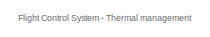
[diagram: root canvas - part 1/3, top left region]
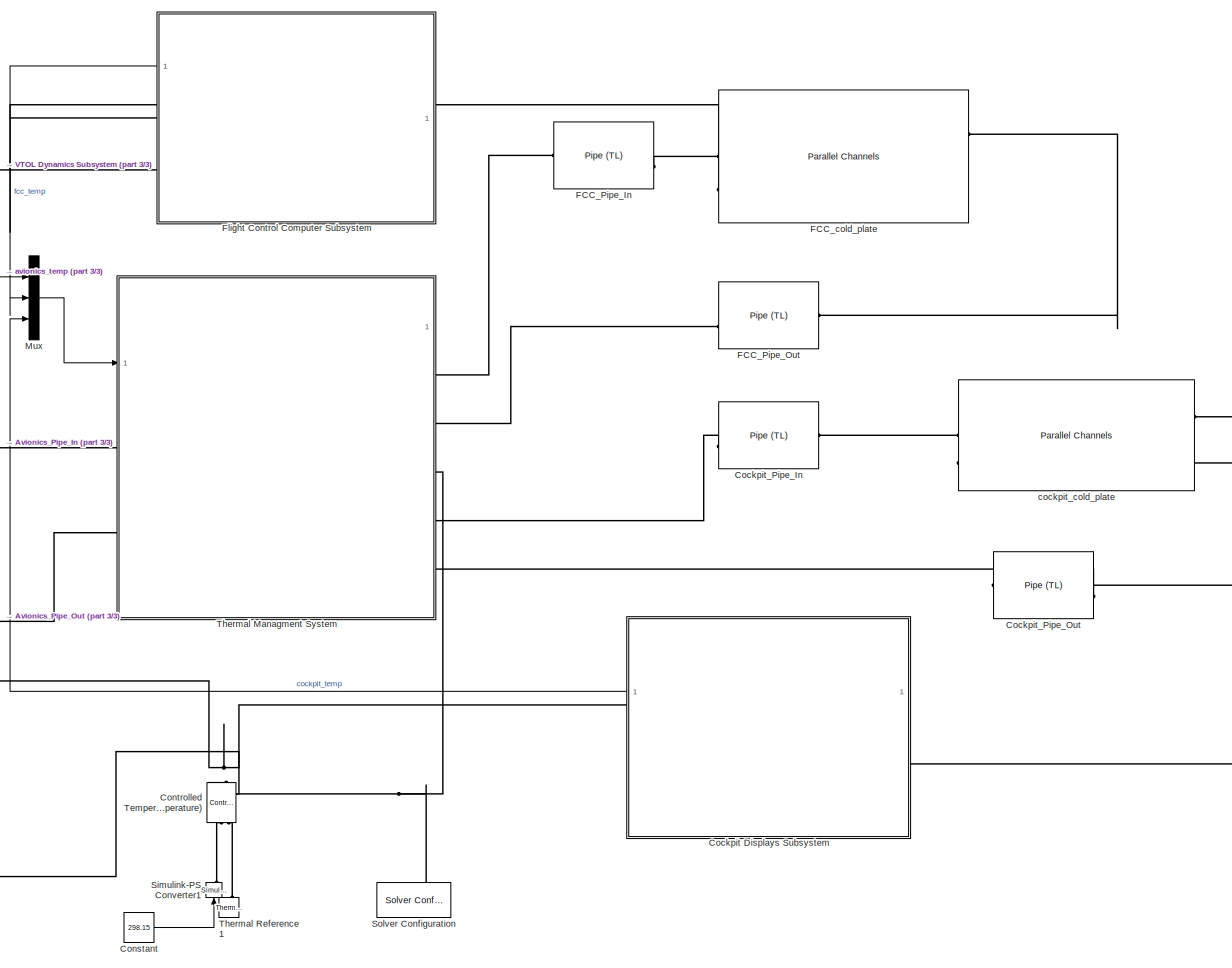
[diagram: root canvas - part 2/3, center side, full height]
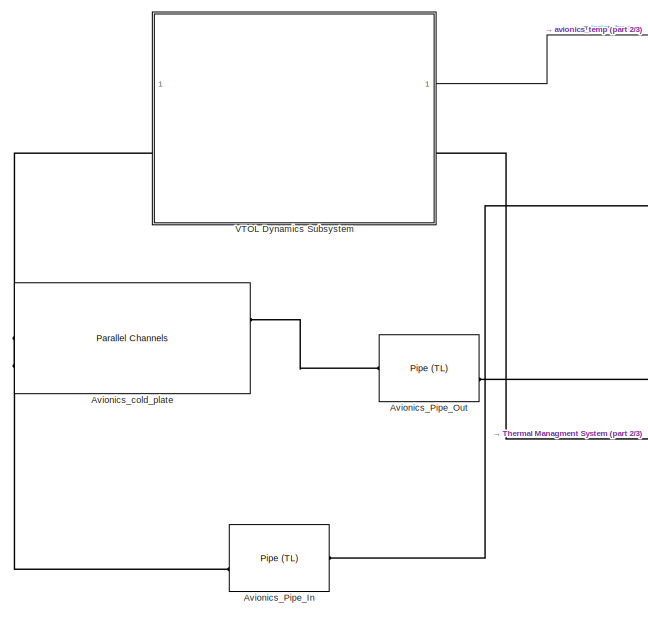
[diagram: root canvas - part 3/3, middle left region]
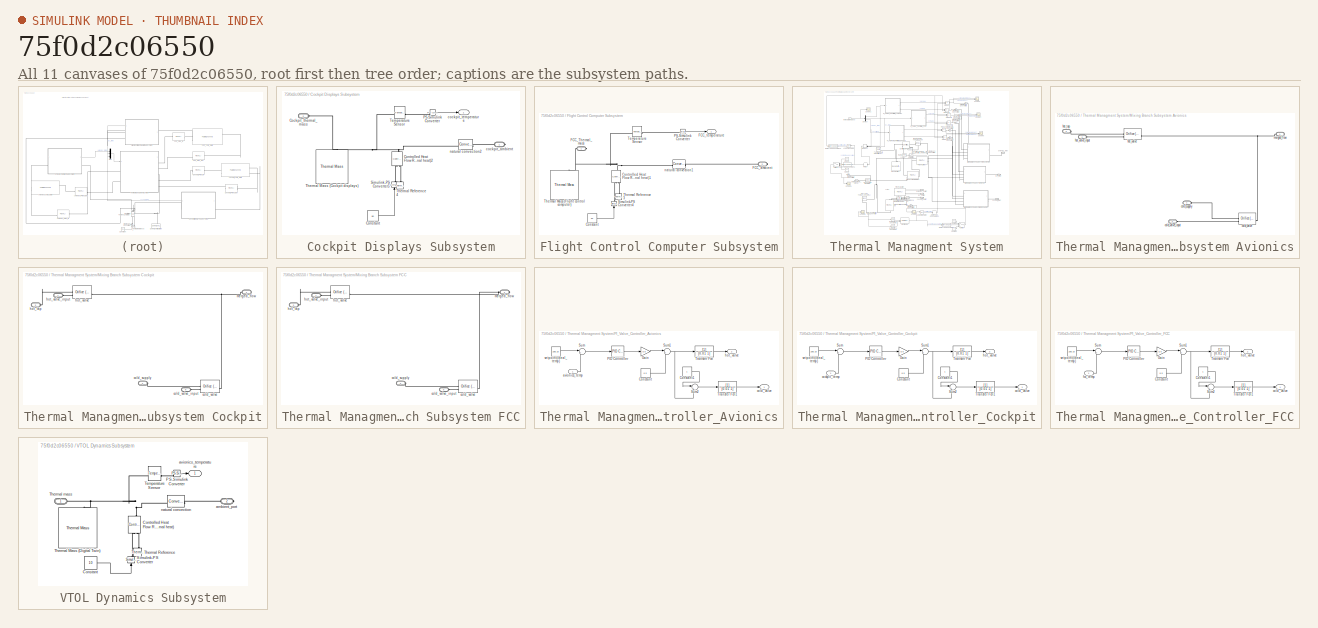
[diagram: thumbnail index - all 11 canvases of the model, root first then tree order]
MODEL slx_75f0d2c06550
KIND model
CONFIG AbsTol = auto
CONFIG EnableMultiTasking = off
CONFIG FixedStep = auto
CONFIG MaxStep = 0.1
CONFIG MinStep = auto
CONFIG RelTol = 1e-2
CONFIG SampleTimeConstraint = Unconstrained
CONFIG SolverName = ode15s
CONFIG StartTime = 0.0
CONFIG StopTime = 5000
BLOCK [Reference] Avionics_Pipe_In  REF=fl_lib/Thermal Liquid/Elements/Pipe (TL)
  SourceBlock = fl_lib/Thermal Liquid/Elements/Pipe (TL)
  SourceType = Pipe (TL)
BLOCK [Reference] Avionics_Pipe_Out  REF=fl_lib/Thermal Liquid/Elements/Pipe (TL)
  SourceBlock = fl_lib/Thermal Liquid/Elements/Pipe (TL)
  SourceType = Pipe (TL)
BLOCK [Reference] Avionics_cold_plate  REF=batt_lib/Thermal/Parallel Channels
  SourceBlock = batt_lib/Thermal/Parallel Channels
  SourceType = Parallel Channels
BLOCK [SubSystem] Cockpit Displays Subsystem
BLOCK [PMIOPort] Cockpit Displays Subsystem/Cockpit_thermal_mass
  Port = 2
  Side = Left
BLOCK [Constant] Cockpit Displays Subsystem/Constant
  Value = 80
BLOCK [Reference] Cockpit Displays Subsystem/Controlled Heat Flow Rate Source (Internal heat)2  REF=fl_lib/Thermal/Thermal Sources/Controlled Heat Flow
Rate Source
  NameLocation = right
  SourceBlock = fl_lib/Thermal/Thermal Sources/Controlled Heat Flow\nRate Source
  SourceType = Controlled Heat Flow\nRate Source
BLOCK [Reference] Cockpit Displays Subsystem/PS-Simulink Converter  REF=nesl_utility/PS-Simulink
Converter
  SourceBlock = nesl_utility/PS-Simulink\nConverter
  SourceType = PS-Simulink\nConverter
BLOCK [Reference] Cockpit Displays Subsystem/Simulink-PS Converter5  REF=nesl_utility/Simulink-PS
Converter
  NameLocation = right
  SourceBlock = nesl_utility/Simulink-PS\nConverter
  SourceType = Simulink-PS\nConverter
BLOCK [Reference] Cockpit Displays Subsystem/Temperature Sensor  REF=fl_lib/Thermal/Thermal Sensors/Temperature Sensor
  SourceBlock = fl_lib/Thermal/Thermal Sensors/Temperature Sensor
  SourceType = Temperature Sensor
BLOCK [Reference] Cockpit Displays Subsystem/Thermal Mass (Cockpit displays)  REF=fl_lib/Thermal/Thermal Elements/Thermal Mass
  SourceBlock = fl_lib/Thermal/Thermal Elements/Thermal Mass
  SourceType = Thermal Mass
BLOCK [Reference] Cockpit Displays Subsystem/Thermal Reference4  REF=fl_lib/Thermal/Thermal Elements/Thermal Reference
  NameLocation = right
  SourceBlock = fl_lib/Thermal/Thermal Elements/Thermal Reference
  SourceType = Thermal Reference
BLOCK [PMIOPort] Cockpit Displays Subsystem/cockpit_ambient
  Side = Right
BLOCK [Outport] Cockpit Displays Subsystem/cockpit_temperature
BLOCK [Reference] Cockpit Displays Subsystem/natural convection2  REF=fl_lib/Thermal/Thermal Elements/Convective Heat
Transfer
  SourceBlock = fl_lib/Thermal/Thermal Elements/Convective Heat\nTransfer
  SourceType = Convective Heat\nTransfer
BLOCK [Reference] Cockpit_Pipe_In  REF=fl_lib/Thermal Liquid/Elements/Pipe (TL)
  NameLocation = top
  SourceBlock = fl_lib/Thermal Liquid/Elements/Pipe (TL)
  SourceType = Pipe (TL)
BLOCK [Reference] Cockpit_Pipe_Out  REF=fl_lib/Thermal Liquid/Elements/Pipe (TL)
  NameLocation = top
  SourceBlock = fl_lib/Thermal Liquid/Elements/Pipe (TL)
  SourceType = Pipe (TL)
BLOCK [Constant] Constant
  Value = 298.15
BLOCK [Reference] Controlled Temperature Source (ambient temperature)  REF=fl_lib/Thermal/Thermal Sources/Controlled
Temperature Source
  NameLocation = right
  SourceBlock = fl_lib/Thermal/Thermal Sources/Controlled\nTemperature Source
  SourceType = Controlled\nTemperature Source
BLOCK [Reference] FCC_Pipe_In  REF=fl_lib/Thermal Liquid/Elements/Pipe (TL)
  SourceBlock = fl_lib/Thermal Liquid/Elements/Pipe (TL)
  SourceType = Pipe (TL)
BLOCK [Reference] FCC_Pipe_Out  REF=fl_lib/Thermal Liquid/Elements/Pipe (TL)
  SourceBlock = fl_lib/Thermal Liquid/Elements/Pipe (TL)
  SourceType = Pipe (TL)
BLOCK [Reference] FCC_cold_plate  REF=batt_lib/Thermal/Parallel Channels
  SourceBlock = batt_lib/Thermal/Parallel Channels
  SourceType = Parallel Channels
BLOCK [SubSystem] Flight Control Computer Subsystem
BLOCK [Constant] Flight Control Computer Subsystem/Constant
  Value = 40
BLOCK [Reference] Flight Control Computer Subsystem/Controlled Heat Flow Rate Source (Internal heat)1  REF=fl_lib/Thermal/Thermal Sources/Controlled Heat Flow
Rate Source
  NameLocation = right
  SourceBlock = fl_lib/Thermal/Thermal Sources/Controlled Heat Flow\nRate Source
  SourceType = Controlled Heat Flow\nRate Source
BLOCK [PMIOPort] Flight Control Computer Subsystem/FCC_Thermal_mass
  Side = Right
BLOCK [PMIOPort] Flight Control Computer Subsystem/FCC_ambient
  Port = 2
  Side = Right
BLOCK [Outport] Flight Control Computer Subsystem/FCC_temperature
BLOCK [Reference] Flight Control Computer Subsystem/PS-Simulink Converter  REF=nesl_utility/PS-Simulink
Converter
  SourceBlock = nesl_utility/PS-Simulink\nConverter
  SourceType = PS-Simulink\nConverter
BLOCK [Reference] Flight Control Computer Subsystem/Simulink-PS Converter4  REF=nesl_utility/Simulink-PS
Converter
  NameLocation = right
  SourceBlock = nesl_utility/Simulink-PS\nConverter
  SourceType = Simulink-PS\nConverter
BLOCK [Reference] Flight Control Computer Subsystem/Temperature Sensor  REF=fl_lib/Thermal/Thermal Sensors/Temperature Sensor
  SourceBlock = fl_lib/Thermal/Thermal Sensors/Temperature Sensor
  SourceType = Temperature Sensor
BLOCK [Reference] Flight Control Computer Subsystem/Thermal Mass (Flight control computer)  REF=fl_lib/Thermal/Thermal Elements/Thermal Mass
  SourceBlock = fl_lib/Thermal/Thermal Elements/Thermal Mass
  SourceType = Thermal Mass
BLOCK [Reference] Flight Control Computer Subsystem/Thermal Reference3  REF=fl_lib/Thermal/Thermal Elements/Thermal Reference
  NameLocation = right
  SourceBlock = fl_lib/Thermal/Thermal Elements/Thermal Reference
  SourceType = Thermal Reference
BLOCK [Reference] Flight Control Computer Subsystem/natural convection1  REF=fl_lib/Thermal/Thermal Elements/Convective Heat
Transfer
  SourceBlock = fl_lib/Thermal/Thermal Elements/Convective Heat\nTransfer
  SourceType = Convective Heat\nTransfer
BLOCK [Mux] Mux
  DisplayOption = bar
  Inputs = 3
BLOCK [Reference] Simulink-PS Converter1  REF=nesl_utility/Simulink-PS
Converter
  NameLocation = right
  SourceBlock = nesl_utility/Simulink-PS\nConverter
  SourceType = Simulink-PS\nConverter
BLOCK [Reference] Solver Configuration  REF=nesl_utility/Solver
Configuration
  NameLocation = right
  SourceBlock = nesl_utility/Solver\nConfiguration
  SourceType = Solver\nConfiguration
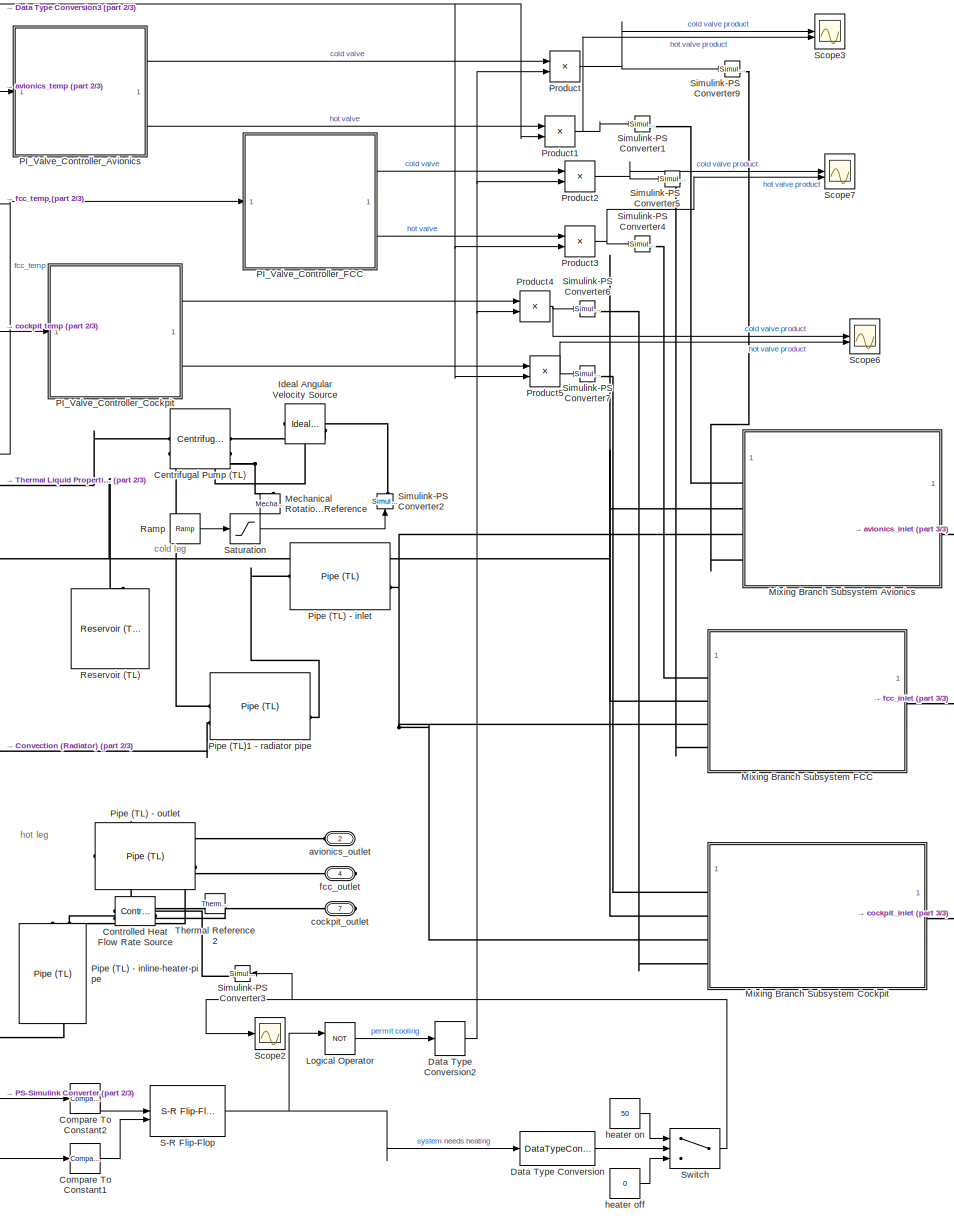
[diagram: Thermal Managment System - part 1/3, center side, full height]
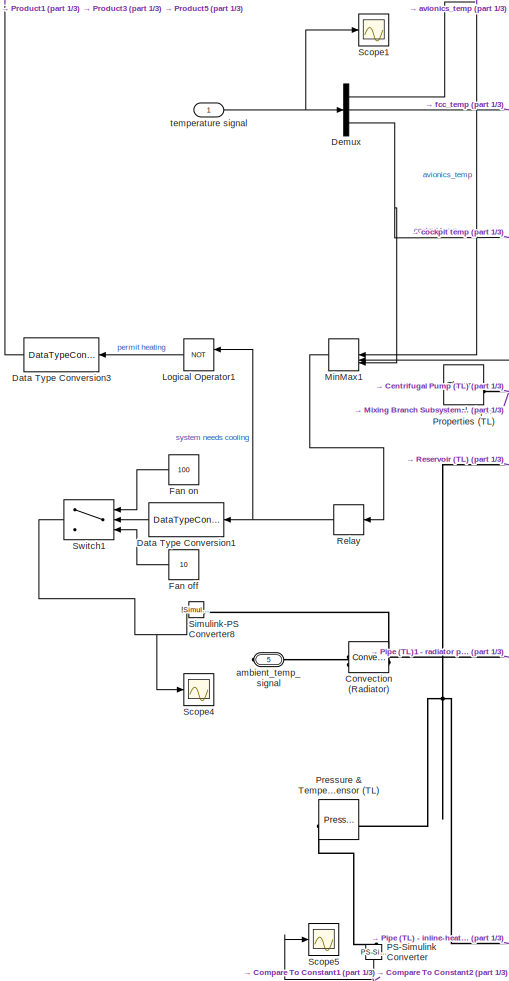
[diagram: Thermal Managment System - part 2/3, left side, full height]
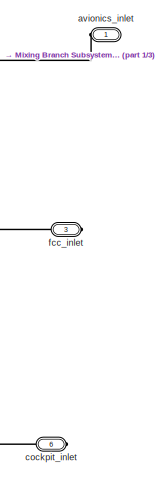
[diagram: Thermal Managment System - part 3/3, middle right region]
BLOCK [SubSystem] Thermal Managment System
BLOCK [Reference] Thermal Managment System/Centrifugal Pump (TL)  REF=SimscapeFluids_lib/Thermal Liquid/Pumps & Motors/Centrifugal Pump
(TL)
  SourceBlock = SimscapeFluids_lib/Thermal Liquid/Pumps & Motors/Centrifugal Pump\n(TL)
  SourceType = Centrifugal Pump\n(TL)
BLOCK [Reference] Thermal Managment System/Compare To Constant1  REF=simulink/Logic and Bit
Operations/Compare
To Constant
  SourceBlock = simulink/Logic and Bit\nOperations/Compare\nTo Constant
  SourceType = Compare To Constant
BLOCK [Reference] Thermal Managment System/Compare To Constant2  REF=simulink/Logic and Bit
Operations/Compare
To Constant
  SourceBlock = simulink/Logic and Bit\nOperations/Compare\nTo Constant
  SourceType = Compare To Constant
BLOCK [Reference] Thermal Managment System/Controlled Heat Flow Rate Source  REF=fl_lib/Thermal/Thermal Sources/Controlled Heat Flow
Rate Source
  NameLocation = top
  SourceBlock = fl_lib/Thermal/Thermal Sources/Controlled Heat Flow\nRate Source
  SourceType = Controlled Heat Flow\nRate Source
BLOCK [Reference] Thermal Managment System/Convection (Radiator)  REF=fl_lib/Thermal/Thermal Elements/Convective Heat
Transfer
  NameLocation = top
  SourceBlock = fl_lib/Thermal/Thermal Elements/Convective Heat\nTransfer
  SourceType = Convective Heat\nTransfer
BLOCK [DataTypeConversion] Thermal Managment System/Data Type Conversion
  OutDataTypeStr = double
  RndMeth = Floor
  SaturateOnIntegerOverflow = off
BLOCK [DataTypeConversion] Thermal Managment System/Data Type Conversion1
  OutDataTypeStr = double
  RndMeth = Floor
  SaturateOnIntegerOverflow = off
BLOCK [DataTypeConversion] Thermal Managment System/Data Type Conversion2
  OutDataTypeStr = double
  RndMeth = Floor
  SaturateOnIntegerOverflow = off
BLOCK [DataTypeConversion] Thermal Managment System/Data Type Conversion3
  OutDataTypeStr = double
  RndMeth = Floor
  SaturateOnIntegerOverflow = off
BLOCK [Demux] Thermal Managment System/Demux
  Outputs = 3
BLOCK [Constant] Thermal Managment System/Fan off
  Value = 10
BLOCK [Constant] Thermal Managment System/Fan on
  Value = 100
BLOCK [Reference] Thermal Managment System/Ideal Angular Velocity Source  REF=fl_lib/Mechanical/Mechanical Sources/Ideal Angular
Velocity Source
  NameLocation = top
  SourceBlock = fl_lib/Mechanical/Mechanical Sources/Ideal Angular\nVelocity Source
  SourceType = Ideal Angular\nVelocity Source
BLOCK [Logic] Thermal Managment System/Logical Operator
  AllPortsSameDT = off
  Operator = NOT
  OutDataTypeStr = boolean
BLOCK [Logic] Thermal Managment System/Logical Operator1
  AllPortsSameDT = off
  Operator = NOT
  OutDataTypeStr = boolean
BLOCK [Reference] Thermal Managment System/Mechanical Rotational Reference  REF=fl_lib/Mechanical/Rotational Elements/Mechanical
Rotational Reference
  NameLocation = right
  SourceBlock = fl_lib/Mechanical/Rotational Elements/Mechanical\nRotational Reference
  SourceType = Mechanical\nRotational Reference
BLOCK [MinMax] Thermal Managment System/MinMax1
  Function = max
  Inputs = 3
BLOCK [SubSystem] Thermal Managment System/Mixing Branch Subsystem Avionics
BLOCK [PMIOPort] Thermal Managment System/Mixing Branch Subsystem Avionics/cold_supply
  Port = 4
  Side = Left
BLOCK [Reference] Thermal Managment System/Mixing Branch Subsystem Avionics/cold_valve  REF=SimscapeFluids_lib/Thermal Liquid/Valves & Orifices/Orifice (TL)
  SourceBlock = SimscapeFluids_lib/Thermal Liquid/Valves & Orifices/Orifice (TL)
  SourceType = Orifice (TL)
BLOCK [PMIOPort] Thermal Managment System/Mixing Branch Subsystem Avionics/cold_valve_input
  Port = 5
  Side = Left
BLOCK [PMIOPort] Thermal Managment System/Mixing Branch Subsystem Avionics/hot_tap
  Port = 3
  Side = Left
BLOCK [Reference] Thermal Managment System/Mixing Branch Subsystem Avionics/hot_valve  REF=SimscapeFluids_lib/Thermal Liquid/Valves & Orifices/Orifice (TL)
  SourceBlock = SimscapeFluids_lib/Thermal Liquid/Valves & Orifices/Orifice (TL)
  SourceType = Orifice (TL)
BLOCK [PMIOPort] Thermal Managment System/Mixing Branch Subsystem Avionics/hot_valve_input
  Port = 2
  Side = Left
BLOCK [PMIOPort] Thermal Managment System/Mixing Branch Subsystem Avionics/merged_flow
  Side = Right
BLOCK [SubSystem] Thermal Managment System/Mixing Branch Subsystem Cockpit
BLOCK [PMIOPort] Thermal Managment System/Mixing Branch Subsystem Cockpit/cold_supply
  Port = 4
  Side = Left
BLOCK [Reference] Thermal Managment System/Mixing Branch Subsystem Cockpit/cold_valve  REF=SimscapeFluids_lib/Thermal Liquid/Valves & Orifices/Orifice (TL)
  SourceBlock = SimscapeFluids_lib/Thermal Liquid/Valves & Orifices/Orifice (TL)
  SourceType = Orifice (TL)
BLOCK [PMIOPort] Thermal Managment System/Mixing Branch Subsystem Cockpit/cold_valve_input
  Port = 5
  Side = Left
BLOCK [PMIOPort] Thermal Managment System/Mixing Branch Subsystem Cockpit/hot_tap
  Port = 3
  Side = Left
BLOCK [Reference] Thermal Managment System/Mixing Branch Subsystem Cockpit/hot_valve  REF=SimscapeFluids_lib/Thermal Liquid/Valves & Orifices/Orifice (TL)
  SourceBlock = SimscapeFluids_lib/Thermal Liquid/Valves & Orifices/Orifice (TL)
  SourceType = Orifice (TL)
BLOCK [PMIOPort] Thermal Managment System/Mixing Branch Subsystem Cockpit/hot_valve_input
  Port = 2
  Side = Left
BLOCK [PMIOPort] Thermal Managment System/Mixing Branch Subsystem Cockpit/merged_flow
  Side = Right
BLOCK [SubSystem] Thermal Managment System/Mixing Branch Subsystem FCC
BLOCK [PMIOPort] Thermal Managment System/Mixing Branch Subsystem FCC/cold_supply
  Port = 4
  Side = Left
BLOCK [Reference] Thermal Managment System/Mixing Branch Subsystem FCC/cold_valve  REF=SimscapeFluids_lib/Thermal Liquid/Valves & Orifices/Orifice (TL)
  SourceBlock = SimscapeFluids_lib/Thermal Liquid/Valves & Orifices/Orifice (TL)
  SourceType = Orifice (TL)
BLOCK [PMIOPort] Thermal Managment System/Mixing Branch Subsystem FCC/cold_valve_input
  Port = 5
  Side = Left
BLOCK [PMIOPort] Thermal Managment System/Mixing Branch Subsystem FCC/hot_tap
  Port = 3
  Side = Left
BLOCK [Reference] Thermal Managment System/Mixing Branch Subsystem FCC/hot_valve  REF=SimscapeFluids_lib/Thermal Liquid/Valves & Orifices/Orifice (TL)
  SourceBlock = SimscapeFluids_lib/Thermal Liquid/Valves & Orifices/Orifice (TL)
  SourceType = Orifice (TL)
BLOCK [PMIOPort] Thermal Managment System/Mixing Branch Subsystem FCC/hot_valve_input
  Port = 2
  Side = Left
BLOCK [PMIOPort] Thermal Managment System/Mixing Branch Subsystem FCC/merged_flow
  Side = Right
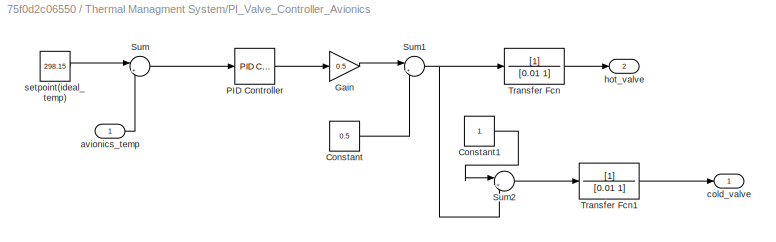
BLOCK [SubSystem] Thermal Managment System/PI_Valve_Controller_Avionics
BLOCK [Constant] Thermal Managment System/PI_Valve_Controller_Avionics/Constant
  Value = 0.5
BLOCK [Constant] Thermal Managment System/PI_Valve_Controller_Avionics/Constant1
BLOCK [Gain] Thermal Managment System/PI_Valve_Controller_Avionics/Gain
  Gain = 0.5
BLOCK [Reference] Thermal Managment System/PI_Valve_Controller_Avionics/PID Controller  REF=slpidlib/PID Controller
  LibrarySourceBlock = simulink/Continuous/PID Controller
  SourceBlock = slpidlib/PID Controller
  SourceType = PID 1dof
BLOCK [Sum] Thermal Managment System/PI_Valve_Controller_Avionics/Sum
  Inputs = |+-
BLOCK [Sum] Thermal Managment System/PI_Valve_Controller_Avionics/Sum1
  Inputs = |++
  NameLocation = top
BLOCK [Sum] Thermal Managment System/PI_Valve_Controller_Avionics/Sum2
  Inputs = |+-
BLOCK [TransferFcn] Thermal Managment System/PI_Valve_Controller_Avionics/Transfer Fcn
  Denominator = [0.01 1]
BLOCK [TransferFcn] Thermal Managment System/PI_Valve_Controller_Avionics/Transfer Fcn1
  Denominator = [0.01 1]
BLOCK [Inport] Thermal Managment System/PI_Valve_Controller_Avionics/avionics_temp
BLOCK [Outport] Thermal Managment System/PI_Valve_Controller_Avionics/cold_valve
BLOCK [Outport] Thermal Managment System/PI_Valve_Controller_Avionics/hot_valve
  Port = 2
BLOCK [Constant] Thermal Managment System/PI_Valve_Controller_Avionics/setpoint(ideal_temp)
  Value = 298.15
BLOCK [SubSystem] Thermal Managment System/PI_Valve_Controller_Cockpit
BLOCK [Constant] Thermal Managment System/PI_Valve_Controller_Cockpit/Constant
  Value = 0.5
BLOCK [Constant] Thermal Managment System/PI_Valve_Controller_Cockpit/Constant1
BLOCK [Gain] Thermal Managment System/PI_Valve_Controller_Cockpit/Gain
  Gain = 0.5
BLOCK [Reference] Thermal Managment System/PI_Valve_Controller_Cockpit/PID Controller  REF=slpidlib/PID Controller
  LibrarySourceBlock = simulink/Continuous/PID Controller
  SourceBlock = slpidlib/PID Controller
  SourceType = PID 1dof
BLOCK [Sum] Thermal Managment System/PI_Valve_Controller_Cockpit/Sum
  Inputs = |+-
BLOCK [Sum] Thermal Managment System/PI_Valve_Controller_Cockpit/Sum1
  Inputs = |++
  NameLocation = top
BLOCK [Sum] Thermal Managment System/PI_Valve_Controller_Cockpit/Sum2
  Inputs = |+-
BLOCK [TransferFcn] Thermal Managment System/PI_Valve_Controller_Cockpit/Transfer Fcn
  Denominator = [0.01 1]
BLOCK [TransferFcn] Thermal Managment System/PI_Valve_Controller_Cockpit/Transfer Fcn1
  Denominator = [0.01 1]
BLOCK [Inport] Thermal Managment System/PI_Valve_Controller_Cockpit/cockpit_temp
BLOCK [Outport] Thermal Managment System/PI_Valve_Controller_Cockpit/cold_valve
BLOCK [Outport] Thermal Managment System/PI_Valve_Controller_Cockpit/hot_valve
  Port = 2
BLOCK [Constant] Thermal Managment System/PI_Valve_Controller_Cockpit/setpoint(ideal_temp)
  Value = 298.15
BLOCK [SubSystem] Thermal Managment System/PI_Valve_Controller_FCC
BLOCK [Constant] Thermal Managment System/PI_Valve_Controller_FCC/Constant
  Value = 0.5
BLOCK [Constant] Thermal Managment System/PI_Valve_Controller_FCC/Constant1
BLOCK [Gain] Thermal Managment System/PI_Valve_Controller_FCC/Gain
  Gain = 0.5
BLOCK [Reference] Thermal Managment System/PI_Valve_Controller_FCC/PID Controller  REF=slpidlib/PID Controller
  LibrarySourceBlock = simulink/Continuous/PID Controller
  SourceBlock = slpidlib/PID Controller
  SourceType = PID 1dof
BLOCK [Sum] Thermal Managment System/PI_Valve_Controller_FCC/Sum
  Inputs = |+-
BLOCK [Sum] Thermal Managment System/PI_Valve_Controller_FCC/Sum1
  Inputs = |++
  NameLocation = top
BLOCK [Sum] Thermal Managment System/PI_Valve_Controller_FCC/Sum2
  Inputs = |+-
BLOCK [TransferFcn] Thermal Managment System/PI_Valve_Controller_FCC/Transfer Fcn
  Denominator = [0.01 1]
BLOCK [TransferFcn] Thermal Managment System/PI_Valve_Controller_FCC/Transfer Fcn1
  Denominator = [0.01 1]
BLOCK [Outport] Thermal Managment System/PI_Valve_Controller_FCC/cold_valve
BLOCK [Inport] Thermal Managment System/PI_Valve_Controller_FCC/fcc_temp
BLOCK [Outport] Thermal Managment System/PI_Valve_Controller_FCC/hot_valve
  Port = 2
BLOCK [Constant] Thermal Managment System/PI_Valve_Controller_FCC/setpoint(ideal_temp)
  Value = 298.15
BLOCK [Reference] Thermal Managment System/PS-Simulink Converter  REF=nesl_utility/PS-Simulink
Converter
  NameLocation = left
  SourceBlock = nesl_utility/PS-Simulink\nConverter
  SourceType = PS-Simulink\nConverter
BLOCK [Reference] Thermal Managment System/Pipe (TL) - inlet  REF=fl_lib/Thermal Liquid/Elements/Pipe (TL)
  SourceBlock = fl_lib/Thermal Liquid/Elements/Pipe (TL)
  SourceType = Pipe (TL)
BLOCK [Reference] Thermal Managment System/Pipe (TL) - inline-heater-pipe  REF=fl_lib/Thermal Liquid/Elements/Pipe (TL)
  SourceBlock = fl_lib/Thermal Liquid/Elements/Pipe (TL)
  SourceType = Pipe (TL)
BLOCK [Reference] Thermal Managment System/Pipe (TL) - outlet  REF=fl_lib/Thermal Liquid/Elements/Pipe (TL)
  NameLocation = top
  SourceBlock = fl_lib/Thermal Liquid/Elements/Pipe (TL)
  SourceType = Pipe (TL)
BLOCK [Reference] Thermal Managment System/Pipe (TL)1 - radiator pipe  REF=fl_lib/Thermal Liquid/Elements/Pipe (TL)
  SourceBlock = fl_lib/Thermal Liquid/Elements/Pipe (TL)
  SourceType = Pipe (TL)
BLOCK [Reference] Thermal Managment System/Pressure & Temperature Sensor (TL)  REF=fl_lib/Thermal Liquid/Sensors/Pressure &
Temperature Sensor
(TL)
  SourceBlock = fl_lib/Thermal Liquid/Sensors/Pressure &\nTemperature Sensor\n(TL)
  SourceType = Pressure &\nTemperature Sensor\n(TL)
BLOCK [Product] Thermal Managment System/Product
BLOCK [Product] Thermal Managment System/Product1
BLOCK [Product] Thermal Managment System/Product2
BLOCK [Product] Thermal Managment System/Product3
BLOCK [Product] Thermal Managment System/Product4
BLOCK [Product] Thermal Managment System/Product5
BLOCK [Reference] Thermal Managment System/Ramp  REF=simulink/Sources/Ramp
  SourceBlock = simulink/Sources/Ramp
  SourceType = Ramp
BLOCK [Relay] Thermal Managment System/Relay
  OffSwitchValue = 307.15
  OnSwitchValue = 308.15
BLOCK [Reference] Thermal Managment System/Reservoir (TL)   REF=fl_lib/Thermal Liquid/Elements/Reservoir (TL)
  SourceBlock = fl_lib/Thermal Liquid/Elements/Reservoir (TL)
  SourceType = Reservoir (TL)
BLOCK [Reference] Thermal Managment System/S-R Flip-Flop  REF=simulink_extras/Flip Flops/S-R
Flip-Flop
  SourceBlock = simulink_extras/Flip Flops/S-R\nFlip-Flop
  SourceType = SRFlipFlop
BLOCK [Saturate] Thermal Managment System/Saturation
  LowerLimit = 0
  UpperLimit = 3000
BLOCK [Scope] Thermal Managment System/Scope1
  ActiveDisplayYMaximum = 309.81465883467445
  ActiveDisplayYMinimum = 294.34876570244938
  DataLoggingVariableName = ScopeData1
  Floating = off
  GraphicalSettings = {"AxesScalingProperties":{"AlignXAxis":"Center","AlignYAxis":"Center","AutoScaleXAxisLimits":false,"AxesScaling":"Manual","AxesScalingNumUpdates":10,"ExpandOnly":true,"ScaleAxesLimitsAtStop":false,"XAxisDataRange":100,"YAxisDataRange":80},"DisplayProperties":{"ColorOrder":["auto","auto","auto","auto","auto","auto","auto","auto","auto","auto","auto","auto","auto","auto","auto","auto","auto","auto",...<+2338ch>
  LayoutDimensionsString = [1,1]
  MultipleDisplayCache = [{"MaxYLimMag":299.95006823882784,"MaxYLimReal":309.81465883467445,"MinYLimMag":297.949992417908,"MinYLimReal":294.34876570244938,"PlotAsMagnitudePhase":false,"ShowGrid":true,"ShowLegend":true,"Title":"%<SignalLabel>","YLabel":""}]
  NumInputPorts = 1
  ScopeFrameLocation = window
  ShowLegend = on
  Visible = on
  WasSavedAsWebScope = on
  WindowPosition = [743.000000,253.000000,560.000000,420.000000,]
BLOCK [Scope] Thermal Managment System/Scope2
  ActiveDisplayYMaximum = 67.656527037864834
  ActiveDisplayYMinimum = -18.574706388101248
  DataLoggingVariableName = ScopeData2
  Floating = off
  GraphicalSettings = {"Style":{"BackgroundColor":[0.12941176470588237,0.12941176470588237,0.12941176470588237],"AxesColor":[0.07058823529411765,0.07058823529411765,0.07058823529411765],"LabelsColor":[0.8509803921568627,0.8509803921568627,0.8509803921568627],"PreserveColors":false,"Visible":[true],"LineStyle":["-"],"LineWidth":[1.5],"BarWidth":[0.9],"LineColor":["auto"],"LineFaceAlpha":[1],"LineEdgeAlpha":[1],"Marker":...<+1947ch>
  MultipleDisplayCache = [{"MaxYLimMag":1,"MaxYLimReal":67.656527037864834,"MinYLimMag":0,"MinYLimReal":-18.574706388101248,"PlotAsMagnitudePhase":false,"ShowGrid":true,"ShowLegend":false,"Title":"%<SignalLabel>","YLabel":""}]
  NumInputPorts = 1
  ScopeFrameLocation = window
  WasSavedAsWebScope = on
  WindowPosition = [821.000000,214.000000,560.000000,420.000000,]
BLOCK [Scope] Thermal Managment System/Scope3
  ActiveDisplayYMaximum = 0.68337651791294018
  ActiveDisplayYMinimum = -0.24217564391764534
  DataLoggingVariableName = ScopeData3
  Floating = off
  GraphicalSettings = {"AxesScalingProperties":{"AlignXAxis":"Center","AlignYAxis":"Center","AutoScaleXAxisLimits":false,"AxesScaling":"Manual","AxesScalingNumUpdates":10,"ExpandOnly":true,"ScaleAxesLimitsAtStop":false,"XAxisDataRange":100,"YAxisDataRange":80},"DisplayProperties":{"ColorOrder":["auto","auto","auto","auto","auto","auto","auto","auto","auto","auto","auto","auto","auto","auto","auto","auto","auto","auto",...<+2197ch>
  MultipleDisplayCache = [{"MaxYLimMag":299.95006823882784,"MaxYLimReal":0.68337651791294018,"MinYLimMag":297.949992417908,"MinYLimReal":-0.24217564391764534,"PlotAsMagnitudePhase":false,"ShowGrid":true,"ShowLegend":true,"Title":"%<SignalLabel>","YLabel":""}]
  NumInputPorts = 2
  ScopeFrameLocation = window
  ShowLegend = on
  WasSavedAsWebScope = on
  WindowPosition = [385.000000,40.000000,766.000000,785.000000,]
BLOCK [Scope] Thermal Managment System/Scope4
  ActiveDisplayYMaximum = 62.456397666600694
  ActiveDisplayYMinimum = -17.443836096573261
  DataLoggingVariableName = ScopeData4
  Floating = off
  GraphicalSettings = {"Style":{"BackgroundColor":[0.12941176470588237,0.12941176470588237,0.12941176470588237],"AxesColor":[0.07058823529411765,0.07058823529411765,0.07058823529411765],"LabelsColor":[0.8509803921568627,0.8509803921568627,0.8509803921568627],"PreserveColors":false,"Visible":[true],"LineStyle":["-"],"LineWidth":[1.5],"BarWidth":[0.9],"LineColor":["auto"],"LineFaceAlpha":[1],"LineEdgeAlpha":[1],"Marker":...<+1956ch>
  MultipleDisplayCache = [{"MaxYLimMag":1,"MaxYLimReal":62.456397666600694,"MinYLimMag":0,"MinYLimReal":-17.443836096573261,"PlotAsMagnitudePhase":false,"ShowGrid":true,"ShowLegend":false,"Title":"%<SignalLabel>","YLabel":""}]
  NumInputPorts = 1
  ScopeFrameLocation = window
  Visible = on
  WasSavedAsWebScope = on
  WindowPosition = [488.000000,222.000000,560.000000,420.000000,]
BLOCK [Scope] Thermal Managment System/Scope5
  ActiveDisplayYMaximum = 296.28099923951214
  ActiveDisplayYMinimum = 292.31370524419793
  DataLoggingVariableName = ScopeData5
  Floating = off
  GraphicalSettings = {"AxesScalingProperties":{"AlignXAxis":"Center","AlignYAxis":"Center","AutoScaleXAxisLimits":false,"AxesScaling":"Manual","AxesScalingNumUpdates":10,"ExpandOnly":true,"ScaleAxesLimitsAtStop":false,"XAxisDataRange":100,"YAxisDataRange":80},"DisplayProperties":{"ColorOrder":["auto","auto","auto","auto","auto","auto","auto","auto","auto","auto","auto","auto","auto","auto","auto","auto","auto","auto",...<+1996ch>
  MultipleDisplayCache = [{"MaxYLimMag":1,"MaxYLimReal":296.28099923951214,"MinYLimMag":0,"MinYLimReal":292.31370524419793,"PlotAsMagnitudePhase":false,"ShowGrid":true,"ShowLegend":true,"Title":"%<SignalLabel>","YLabel":""}]
  NumInputPorts = 1
  ScopeFrameLocation = window
  ShowLegend = on
  WasSavedAsWebScope = on
  WindowPosition = [830.000000,257.000000,560.000000,420.000000,]
BLOCK [Scope] Thermal Managment System/Scope6
  ActiveDisplayYMaximum = 1.3314895720023909
  ActiveDisplayYMinimum = -0.26550876950504732
  DataLoggingVariableName = ScopeData6
  Floating = off
  GraphicalSettings = {"Style":{"BackgroundColor":[0.12941176470588237,0.12941176470588237,0.12941176470588237],"AxesColor":[0.07058823529411765,0.07058823529411765,0.07058823529411765],"LabelsColor":[0.8509803921568627,0.8509803921568627,0.8509803921568627],"PreserveColors":false,"Visible":[true,true],"LineStyle":["-","-"],"LineWidth":[1.5,1.5],"BarWidth":[0.9,0.9],"LineColor":["auto","auto"],"LineFaceAlpha":[1,1],"Li...<+2182ch>
  MultipleDisplayCache = [{"MaxYLimMag":299.95006823882784,"MaxYLimReal":1.3314895720023909,"MinYLimMag":297.949992417908,"MinYLimReal":-0.26550876950504732,"PlotAsMagnitudePhase":false,"ShowGrid":true,"ShowLegend":true,"Title":"%<SignalLabel>","YLabel":""}]
  NumInputPorts = 2
  ScopeFrameLocation = window
  ShowLegend = on
  WasSavedAsWebScope = on
  WindowPosition = [861.000000,173.000000,560.000000,420.000000,]
BLOCK [Scope] Thermal Managment System/Scope7
  ActiveDisplayYMaximum = 1.2618169694914934
  ActiveDisplayYMinimum = -0.25040000463615819
  Floating = off
  GraphicalSettings = {"Style":{"BackgroundColor":[0.12941176470588237,0.12941176470588237,0.12941176470588237],"AxesColor":[0.07058823529411765,0.07058823529411765,0.07058823529411765],"LabelsColor":[0.8509803921568627,0.8509803921568627,0.8509803921568627],"PreserveColors":false,"Visible":[true,true],"LineStyle":["-","-"],"LineWidth":[1.5,1.5],"BarWidth":[0.9,0.9],"LineColor":["auto","auto"],"LineFaceAlpha":[1,1],"Li...<+2184ch>
  MultipleDisplayCache = [{"MaxYLimMag":299.95006823882784,"MaxYLimReal":1.2618169694914934,"MinYLimMag":297.949992417908,"MinYLimReal":-0.25040000463615819,"PlotAsMagnitudePhase":false,"ShowGrid":true,"ShowLegend":true,"Title":"%<SignalLabel>","YLabel":""}]
  NumInputPorts = 2
  ScopeFrameLocation = window
  ShowLegend = on
  WasSavedAsWebScope = on
  WindowPosition = [385.000000,40.000000,766.000000,785.000000,]
BLOCK [Reference] Thermal Managment System/Simulink-PS Converter1  REF=nesl_utility/Simulink-PS
Converter
  SourceBlock = nesl_utility/Simulink-PS\nConverter
  SourceType = Simulink-PS\nConverter
BLOCK [Reference] Thermal Managment System/Simulink-PS Converter2  REF=nesl_utility/Simulink-PS
Converter
  NameLocation = right
  SourceBlock = nesl_utility/Simulink-PS\nConverter
  SourceType = Simulink-PS\nConverter
BLOCK [Reference] Thermal Managment System/Simulink-PS Converter3  REF=nesl_utility/Simulink-PS
Converter
  NameLocation = top
  SourceBlock = nesl_utility/Simulink-PS\nConverter
  SourceType = Simulink-PS\nConverter
BLOCK [Reference] Thermal Managment System/Simulink-PS Converter4  REF=nesl_utility/Simulink-PS
Converter
  SourceBlock = nesl_utility/Simulink-PS\nConverter
  SourceType = Simulink-PS\nConverter
BLOCK [Reference] Thermal Managment System/Simulink-PS Converter5  REF=nesl_utility/Simulink-PS
Converter
  SourceBlock = nesl_utility/Simulink-PS\nConverter
  SourceType = Simulink-PS\nConverter
BLOCK [Reference] Thermal Managment System/Simulink-PS Converter6  REF=nesl_utility/Simulink-PS
Converter
  SourceBlock = nesl_utility/Simulink-PS\nConverter
  SourceType = Simulink-PS\nConverter
BLOCK [Reference] Thermal Managment System/Simulink-PS Converter7  REF=nesl_utility/Simulink-PS
Converter
  SourceBlock = nesl_utility/Simulink-PS\nConverter
  SourceType = Simulink-PS\nConverter
BLOCK [Reference] Thermal Managment System/Simulink-PS Converter8  REF=nesl_utility/Simulink-PS
Converter
  SourceBlock = nesl_utility/Simulink-PS\nConverter
  SourceType = Simulink-PS\nConverter
BLOCK [Reference] Thermal Managment System/Simulink-PS Converter9  REF=nesl_utility/Simulink-PS
Converter
  SourceBlock = nesl_utility/Simulink-PS\nConverter
  SourceType = Simulink-PS\nConverter
BLOCK [Switch] Thermal Managment System/Switch
  Criteria = u2 ~= 0
  InputSameDT = off
  SaturateOnIntegerOverflow = off
BLOCK [Switch] Thermal Managment System/Switch1
  Criteria = u2 ~= 0
  InputSameDT = off
  SaturateOnIntegerOverflow = off
BLOCK [Reference] Thermal Managment System/Thermal Liquid Properties (TL)   REF=SimscapeFluids_lib/Thermal Liquid/Utilities/Thermal Liquid
Properties (TL)
  SourceBlock = SimscapeFluids_lib/Thermal Liquid/Utilities/Thermal Liquid\nProperties (TL)
  SourceType = Thermal Liquid\nProperties (TL)
BLOCK [Reference] Thermal Managment System/Thermal Reference2  REF=fl_lib/Thermal/Thermal Elements/Thermal Reference
  NameLocation = top
  SourceBlock = fl_lib/Thermal/Thermal Elements/Thermal Reference
  SourceType = Thermal Reference
BLOCK [PMIOPort] Thermal Managment System/ambient_temp_signal
  NameLocation = top
  Port = 5
  Side = Right
BLOCK [PMIOPort] Thermal Managment System/avionics_inlet
  NameLocation = top
  Side = Left
BLOCK [PMIOPort] Thermal Managment System/avionics_outlet
  NameLocation = top
  Port = 2
  Side = Left
BLOCK [PMIOPort] Thermal Managment System/cockpit_inlet
  NameLocation = top
  Port = 6
  Side = Right
BLOCK [PMIOPort] Thermal Managment System/cockpit_outlet
  NameLocation = top
  Port = 7
  Side = Right
BLOCK [PMIOPort] Thermal Managment System/fcc_inlet
  NameLocation = top
  Port = 3
  Side = Right
BLOCK [PMIOPort] Thermal Managment System/fcc_outlet
  NameLocation = top
  Port = 4
  Side = Right
BLOCK [Constant] Thermal Managment System/heater off
  Value = 0
BLOCK [Constant] Thermal Managment System/heater on
  Value = 50
BLOCK [Inport] Thermal Managment System/temperature signal
BLOCK [Reference] Thermal Reference1  REF=fl_lib/Thermal/Thermal Elements/Thermal Reference
  NameLocation = right
  SourceBlock = fl_lib/Thermal/Thermal Elements/Thermal Reference
  SourceType = Thermal Reference
BLOCK [SubSystem] VTOL Dynamics Subsystem
BLOCK [Constant] VTOL Dynamics Subsystem/Constant
  Value = 10
BLOCK [Reference] VTOL Dynamics Subsystem/Controlled Heat Flow Rate Source (Internal heat)  REF=fl_lib/Thermal/Thermal Sources/Controlled Heat Flow
Rate Source
  NameLocation = right
  SourceBlock = fl_lib/Thermal/Thermal Sources/Controlled Heat Flow\nRate Source
  SourceType = Controlled Heat Flow\nRate Source
BLOCK [Reference] VTOL Dynamics Subsystem/PS-Simulink Converter  REF=nesl_utility/PS-Simulink
Converter
  SourceBlock = nesl_utility/PS-Simulink\nConverter
  SourceType = PS-Simulink\nConverter
BLOCK [Reference] VTOL Dynamics Subsystem/Simulink-PS Converter  REF=nesl_utility/Simulink-PS
Converter
  NameLocation = right
  SourceBlock = nesl_utility/Simulink-PS\nConverter
  SourceType = Simulink-PS\nConverter
BLOCK [Reference] VTOL Dynamics Subsystem/Temperature Sensor  REF=fl_lib/Thermal/Thermal Sensors/Temperature Sensor
  SourceBlock = fl_lib/Thermal/Thermal Sensors/Temperature Sensor
  SourceType = Temperature Sensor
BLOCK [Reference] VTOL Dynamics Subsystem/Thermal Mass (Digital Twin)  REF=fl_lib/Thermal/Thermal Elements/Thermal Mass
  SourceBlock = fl_lib/Thermal/Thermal Elements/Thermal Mass
  SourceType = Thermal Mass
BLOCK [Reference] VTOL Dynamics Subsystem/Thermal Reference  REF=fl_lib/Thermal/Thermal Elements/Thermal Reference
  NameLocation = right
  SourceBlock = fl_lib/Thermal/Thermal Elements/Thermal Reference
  SourceType = Thermal Reference
BLOCK [PMIOPort] VTOL Dynamics Subsystem/Thermal mass
  Side = Left
BLOCK [PMIOPort] VTOL Dynamics Subsystem/ambient_port
  Port = 2
  Side = Right
BLOCK [Outport] VTOL Dynamics Subsystem/avionics_temperature
BLOCK [Reference] VTOL Dynamics Subsystem/natural convection  REF=fl_lib/Thermal/Thermal Elements/Convective Heat
Transfer
  SourceBlock = fl_lib/Thermal/Thermal Elements/Convective Heat\nTransfer
  SourceType = Convective Heat\nTransfer
BLOCK [Reference] cockpit_cold_plate  REF=batt_lib/Thermal/Parallel Channels
  SourceBlock = batt_lib/Thermal/Parallel Channels
  SourceType = Parallel Channels
ANNOTATION (root): Flight Control System - Thermal management
ANNOTATION Thermal Managment System: cold leg
ANNOTATION Thermal Managment System: hot leg
LINE Cockpit Displays Subsystem/Constant:1 -> Cockpit Displays Subsystem/Simulink-PS Converter5:1
LINE Cockpit Displays Subsystem/PS-Simulink Converter:1 -> Cockpit Displays Subsystem/cockpit_temperature:1
LINE Cockpit Displays Subsystem:1 -> Mux:3
LINE Constant:1 -> Simulink-PS Converter1:1
LINE Flight Control Computer Subsystem/Constant:1 -> Flight Control Computer Subsystem/Simulink-PS Converter4:1
LINE Flight Control Computer Subsystem/PS-Simulink Converter:1 -> Flight Control Computer Subsystem/FCC_temperature:1
LINE Flight Control Computer Subsystem:1 -> Mux:2
LINE Mux:1 -> Thermal Managment System:1
LINE Thermal Managment System/Compare To Constant1:1 -> Thermal Managment System/S-R Flip-Flop:2
LINE Thermal Managment System/Compare To Constant2:1 -> Thermal Managment System/S-R Flip-Flop:1
LINE Thermal Managment System/Data Type Conversion1:1 -> Thermal Managment System/Switch1:2
NET Thermal Managment System/Data Type Conversion2:1 -> Thermal Managment System/Product2:2, Thermal Managment System/Product4:2, Thermal Managment System/Product:2
NET Thermal Managment System/Data Type Conversion3:1 -> Thermal Managment System/Product1:2, Thermal Managment System/Product3:2, Thermal Managment System/Product5:2
LINE Thermal Managment System/Data Type Conversion:1 -> Thermal Managment System/Switch:2
NET Thermal Managment System/Demux:1 -> Thermal Managment System/MinMax1:1, Thermal Managment System/PI_Valve_Controller_Avionics:1
NET Thermal Managment System/Demux:2 -> Thermal Managment System/MinMax1:2, Thermal Managment System/PI_Valve_Controller_FCC:1
NET Thermal Managment System/Demux:3 -> Thermal Managment System/MinMax1:3, Thermal Managment System/PI_Valve_Controller_Cockpit:1
LINE Thermal Managment System/Fan off:1 -> Thermal Managment System/Switch1:3
LINE Thermal Managment System/Fan on:1 -> Thermal Managment System/Switch1:1
LINE Thermal Managment System/Logical Operator1:1 -> Thermal Managment System/Data Type Conversion3:1
LINE Thermal Managment System/Logical Operator:1 -> Thermal Managment System/Data Type Conversion2:1
LINE Thermal Managment System/MinMax1:1 -> Thermal Managment System/Relay:1
LINE Thermal Managment System/PI_Valve_Controller_Avionics/Constant1:1 -> Thermal Managment System/PI_Valve_Controller_Avionics/Sum2:1
LINE Thermal Managment System/PI_Valve_Controller_Avionics/Constant:1 -> Thermal Managment System/PI_Valve_Controller_Avionics/Sum1:2
LINE Thermal Managment System/PI_Valve_Controller_Avionics/Gain:1 -> Thermal Managment System/PI_Valve_Controller_Avionics/Sum1:1
LINE Thermal Managment System/PI_Valve_Controller_Avionics/PID Controller:1 -> Thermal Managment System/PI_Valve_Controller_Avionics/Gain:1
NET Thermal Managment System/PI_Valve_Controller_Avionics/Sum1:1 -> Thermal Managment System/PI_Valve_Controller_Avionics/Sum2:2, Thermal Managment System/PI_Valve_Controller_Avionics/Transfer Fcn:1
LINE Thermal Managment System/PI_Valve_Controller_Avionics/Sum2:1 -> Thermal Managment System/PI_Valve_Controller_Avionics/Transfer Fcn1:1
LINE Thermal Managment System/PI_Valve_Controller_Avionics/Sum:1 -> Thermal Managment System/PI_Valve_Controller_Avionics/PID Controller:1
LINE Thermal Managment System/PI_Valve_Controller_Avionics/Transfer Fcn1:1 -> Thermal Managment System/PI_Valve_Controller_Avionics/cold_valve:1
LINE Thermal Managment System/PI_Valve_Controller_Avionics/Transfer Fcn:1 -> Thermal Managment System/PI_Valve_Controller_Avionics/hot_valve:1
LINE Thermal Managment System/PI_Valve_Controller_Avionics/avionics_temp:1 -> Thermal Managment System/PI_Valve_Controller_Avionics/Sum:2
LINE Thermal Managment System/PI_Valve_Controller_Avionics/setpoint(ideal_temp):1 -> Thermal Managment System/PI_Valve_Controller_Avionics/Sum:1
LINE Thermal Managment System/PI_Valve_Controller_Avionics:1 -> Thermal Managment System/Product:1
LINE Thermal Managment System/PI_Valve_Controller_Avionics:2 -> Thermal Managment System/Product1:1
LINE Thermal Managment System/PI_Valve_Controller_Cockpit/Constant1:1 -> Thermal Managment System/PI_Valve_Controller_Cockpit/Sum2:1
LINE Thermal Managment System/PI_Valve_Controller_Cockpit/Constant:1 -> Thermal Managment System/PI_Valve_Controller_Cockpit/Sum1:2
LINE Thermal Managment System/PI_Valve_Controller_Cockpit/Gain:1 -> Thermal Managment System/PI_Valve_Controller_Cockpit/Sum1:1
LINE Thermal Managment System/PI_Valve_Controller_Cockpit/PID Controller:1 -> Thermal Managment System/PI_Valve_Controller_Cockpit/Gain:1
NET Thermal Managment System/PI_Valve_Controller_Cockpit/Sum1:1 -> Thermal Managment System/PI_Valve_Controller_Cockpit/Sum2:2, Thermal Managment System/PI_Valve_Controller_Cockpit/Transfer Fcn:1
LINE Thermal Managment System/PI_Valve_Controller_Cockpit/Sum2:1 -> Thermal Managment System/PI_Valve_Controller_Cockpit/Transfer Fcn1:1
LINE Thermal Managment System/PI_Valve_Controller_Cockpit/Sum:1 -> Thermal Managment System/PI_Valve_Controller_Cockpit/PID Controller:1
LINE Thermal Managment System/PI_Valve_Controller_Cockpit/Transfer Fcn1:1 -> Thermal Managment System/PI_Valve_Controller_Cockpit/cold_valve:1
LINE Thermal Managment System/PI_Valve_Controller_Cockpit/Transfer Fcn:1 -> Thermal Managment System/PI_Valve_Controller_Cockpit/hot_valve:1
LINE Thermal Managment System/PI_Valve_Controller_Cockpit/cockpit_temp:1 -> Thermal Managment System/PI_Valve_Controller_Cockpit/Sum:2
LINE Thermal Managment System/PI_Valve_Controller_Cockpit/setpoint(ideal_temp):1 -> Thermal Managment System/PI_Valve_Controller_Cockpit/Sum:1
LINE Thermal Managment System/PI_Valve_Controller_Cockpit:1 -> Thermal Managment System/Product4:1
LINE Thermal Managment System/PI_Valve_Controller_Cockpit:2 -> Thermal Managment System/Product5:1
LINE Thermal Managment System/PI_Valve_Controller_FCC/Constant1:1 -> Thermal Managment System/PI_Valve_Controller_FCC/Sum2:1
LINE Thermal Managment System/PI_Valve_Controller_FCC/Constant:1 -> Thermal Managment System/PI_Valve_Controller_FCC/Sum1:2
LINE Thermal Managment System/PI_Valve_Controller_FCC/Gain:1 -> Thermal Managment System/PI_Valve_Controller_FCC/Sum1:1
LINE Thermal Managment System/PI_Valve_Controller_FCC/PID Controller:1 -> Thermal Managment System/PI_Valve_Controller_FCC/Gain:1
NET Thermal Managment System/PI_Valve_Controller_FCC/Sum1:1 -> Thermal Managment System/PI_Valve_Controller_FCC/Sum2:2, Thermal Managment System/PI_Valve_Controller_FCC/Transfer Fcn:1
LINE Thermal Managment System/PI_Valve_Controller_FCC/Sum2:1 -> Thermal Managment System/PI_Valve_Controller_FCC/Transfer Fcn1:1
LINE Thermal Managment System/PI_Valve_Controller_FCC/Sum:1 -> Thermal Managment System/PI_Valve_Controller_FCC/PID Controller:1
LINE Thermal Managment System/PI_Valve_Controller_FCC/Transfer Fcn1:1 -> Thermal Managment System/PI_Valve_Controller_FCC/cold_valve:1
LINE Thermal Managment System/PI_Valve_Controller_FCC/Transfer Fcn:1 -> Thermal Managment System/PI_Valve_Controller_FCC/hot_valve:1
LINE Thermal Managment System/PI_Valve_Controller_FCC/fcc_temp:1 -> Thermal Managment System/PI_Valve_Controller_FCC/Sum:2
LINE Thermal Managment System/PI_Valve_Controller_FCC/setpoint(ideal_temp):1 -> Thermal Managment System/PI_Valve_Controller_FCC/Sum:1
LINE Thermal Managment System/PI_Valve_Controller_FCC:1 -> Thermal Managment System/Product2:1
LINE Thermal Managment System/PI_Valve_Controller_FCC:2 -> Thermal Managment System/Product3:1
NET Thermal Managment System/PS-Simulink Converter:1 -> Thermal Managment System/Compare To Constant1:1, Thermal Managment System/Compare To Constant2:1, Thermal Managment System/Scope5:1
NET Thermal Managment System/Product1:1 -> Thermal Managment System/Scope3:2, Thermal Managment System/Simulink-PS Converter1:1
NET Thermal Managment System/Product2:1 -> Thermal Managment System/Scope7:1, Thermal Managment System/Simulink-PS Converter5:1
NET Thermal Managment System/Product3:1 -> Thermal Managment System/Scope7:2, Thermal Managment System/Simulink-PS Converter4:1
NET Thermal Managment System/Product4:1 -> Thermal Managment System/Scope6:1, Thermal Managment System/Simulink-PS Converter6:1
NET Thermal Managment System/Product5:1 -> Thermal Managment System/Scope6:2, Thermal Managment System/Simulink-PS Converter7:1
NET Thermal Managment System/Product:1 -> Thermal Managment System/Scope3:1, Thermal Managment System/Simulink-PS Converter9:1
LINE Thermal Managment System/Ramp:1 -> Thermal Managment System/Saturation:1
NET Thermal Managment System/Relay:1 -> Thermal Managment System/Data Type Conversion1:1, Thermal Managment System/Logical Operator1:1
NET Thermal Managment System/S-R Flip-Flop:1 -> Thermal Managment System/Data Type Conversion:1, Thermal Managment System/Logical Operator:1
LINE Thermal Managment System/Saturation:1 -> Thermal Managment System/Simulink-PS Converter2:1
NET Thermal Managment System/Switch1:1 -> Thermal Managment System/Scope4:1, Thermal Managment System/Simulink-PS Converter8:1
NET Thermal Managment System/Switch:1 -> Thermal Managment System/Scope2:1, Thermal Managment System/Simulink-PS Converter3:1
LINE Thermal Managment System/heater off:1 -> Thermal Managment System/Switch:3
LINE Thermal Managment System/heater on:1 -> Thermal Managment System/Switch:1
NET Thermal Managment System/temperature signal:1 -> Thermal Managment System/Demux:1, Thermal Managment System/Scope1:1
LINE VTOL Dynamics Subsystem/Constant:1 -> VTOL Dynamics Subsystem/Simulink-PS Converter:1
LINE VTOL Dynamics Subsystem/PS-Simulink Converter:1 -> VTOL Dynamics Subsystem/avionics_temperature:1
LINE VTOL Dynamics Subsystem:1 -> Mux:1
PLINE Avionics_Pipe_In:LConn1 -- Thermal Managment System:LConn1
PLINE Avionics_Pipe_In:RConn1 -- Avionics_cold_plate:LConn1
PLINE Avionics_Pipe_Out:LConn1 -- Avionics_cold_plate:RConn1
PLINE Avionics_Pipe_Out:RConn1 -- Thermal Managment System:LConn2
PLINE Avionics_cold_plate:LConn2 -- VTOL Dynamics Subsystem:LConn1
PNET net1: Cockpit Displays Subsystem/Cockpit_thermal_mass:RConn1 -- Cockpit Displays Subsystem/Controlled Heat Flow Rate Source (Internal heat)2:LConn1 -- Cockpit Displays Subsystem/Temperature Sensor:LConn1 -- Cockpit Displays Subsystem/Thermal Mass (Cockpit displays):LConn1 -- Cockpit Displays Subsystem/natural convection2:LConn1
PLINE Cockpit Displays Subsystem/Controlled Heat Flow Rate Source (Internal heat)2:RConn1 -- Cockpit Displays Subsystem/Simulink-PS Converter5:RConn1
PLINE Cockpit Displays Subsystem/Controlled Heat Flow Rate Source (Internal heat)2:RConn2 -- Cockpit Displays Subsystem/Thermal Reference4:LConn1
PLINE Cockpit Displays Subsystem/PS-Simulink Converter:LConn1 -- Cockpit Displays Subsystem/Temperature Sensor:RConn1
PLINE Cockpit Displays Subsystem/cockpit_ambient:RConn1 -- Cockpit Displays Subsystem/natural convection2:RConn1
PLINE Cockpit Displays Subsystem:LConn1 -- cockpit_cold_plate:LConn2
PNET net2: Cockpit Displays Subsystem:RConn1 -- Controlled Temperature Source (ambient temperature):LConn1 -- Flight Control Computer Subsystem:RConn2 -- Solver Configuration:RConn1 -- Thermal Managment System:RConn3 -- VTOL Dynamics Subsystem:RConn1
PLINE Cockpit_Pipe_In:LConn1 -- Thermal Managment System:RConn4
PLINE Cockpit_Pipe_In:RConn1 -- cockpit_cold_plate:LConn1
PLINE Cockpit_Pipe_Out:LConn1 -- cockpit_cold_plate:RConn1
PLINE Cockpit_Pipe_Out:RConn1 -- Thermal Managment System:RConn5
PLINE Controlled Temperature Source (ambient temperature):RConn1 -- Simulink-PS Converter1:RConn1
PLINE Controlled Temperature Source (ambient temperature):RConn2 -- Thermal Reference1:LConn1
PLINE FCC_Pipe_In:LConn1 -- Thermal Managment System:RConn1
PLINE FCC_Pipe_In:RConn1 -- FCC_cold_plate:LConn1
PLINE FCC_Pipe_Out:LConn1 -- FCC_cold_plate:RConn1
PLINE FCC_Pipe_Out:RConn1 -- Thermal Managment System:RConn2
PLINE FCC_cold_plate:LConn2 -- Flight Control Computer Subsystem:RConn1
PNET net3: Flight Control Computer Subsystem/Controlled Heat Flow Rate Source (Internal heat)1:LConn1 -- Flight Control Computer Subsystem/FCC_Thermal_mass:RConn1 -- Flight Control Computer Subsystem/Temperature Sensor:LConn1 -- Flight Control Computer Subsystem/Thermal Mass (Flight control computer):LConn1 -- Flight Control Computer Subsystem/natural convection1:LConn1
PLINE Flight Control Computer Subsystem/Controlled Heat Flow Rate Source (Internal heat)1:RConn1 -- Flight Control Computer Subsystem/Simulink-PS Converter4:RConn1
PLINE Flight Control Computer Subsystem/Controlled Heat Flow Rate Source (Internal heat)1:RConn2 -- Flight Control Computer Subsystem/Thermal Reference3:LConn1
PLINE Flight Control Computer Subsystem/FCC_ambient:RConn1 -- Flight Control Computer Subsystem/natural convection1:RConn1
PLINE Flight Control Computer Subsystem/PS-Simulink Converter:LConn1 -- Flight Control Computer Subsystem/Temperature Sensor:RConn1
PNET net4: Thermal Managment System/Centrifugal Pump (TL):LConn1 -- Thermal Managment System/Mixing Branch Subsystem Avionics:LConn2 -- Thermal Managment System/Mixing Branch Subsystem Cockpit:LConn2 -- Thermal Managment System/Mixing Branch Subsystem FCC:LConn2 -- Thermal Managment System/Pipe (TL) - inline-heater-pipe:RConn1 -- Thermal Managment System/Pressure & Temperature Sensor (TL):LConn1 -- Thermal Managment System/Reservoir (TL) :LConn1 -- Thermal Managment System/Thermal Liquid Properties (TL) :RConn1
PLINE Thermal Managment System/Centrifugal Pump (TL):LConn2 -- Thermal Managment System/Pipe (TL)1 - radiator pipe:LConn1
PLINE Thermal Managment System/Centrifugal Pump (TL):RConn1 -- Thermal Managment System/Ideal Angular Velocity Source:LConn1
PNET net5: Thermal Managment System/Centrifugal Pump (TL):RConn2 -- Thermal Managment System/Ideal Angular Velocity Source:RConn2 -- Thermal Managment System/Mechanical Rotational Reference:LConn1
PLINE Thermal Managment System/Controlled Heat Flow Rate Source:LConn1 -- Thermal Managment System/Pipe (TL) - inline-heater-pipe:LConn2
PLINE Thermal Managment System/Controlled Heat Flow Rate Source:RConn1 -- Thermal Managment System/Simulink-PS Converter3:RConn1
PLINE Thermal Managment System/Controlled Heat Flow Rate Source:RConn2 -- Thermal Managment System/Thermal Reference2:LConn1
PLINE Thermal Managment System/Convection (Radiator):LConn1 -- Thermal Managment System/Pipe (TL)1 - radiator pipe:LConn2
PLINE Thermal Managment System/Convection (Radiator):LConn2 -- Thermal Managment System/Simulink-PS Converter8:RConn1
PLINE Thermal Managment System/Convection (Radiator):RConn1 -- Thermal Managment System/ambient_temp_signal:RConn1
PLINE Thermal Managment System/Ideal Angular Velocity Source:RConn1 -- Thermal Managment System/Simulink-PS Converter2:RConn1
PLINE Thermal Managment System/Mixing Branch Subsystem Avionics/cold_supply:RConn1 -- Thermal Managment System/Mixing Branch Subsystem Avionics/cold_valve:LConn1
PLINE Thermal Managment System/Mixing Branch Subsystem Avionics/cold_valve:LConn2 -- Thermal Managment System/Mixing Branch Subsystem Avionics/cold_valve_input:RConn1
PNET net6: Thermal Managment System/Mixing Branch Subsystem Avionics/cold_valve:RConn1 -- Thermal Managment System/Mixing Branch Subsystem Avionics/hot_valve:RConn1 -- Thermal Managment System/Mixing Branch Subsystem Avionics/merged_flow:RConn1
PLINE Thermal Managment System/Mixing Branch Subsystem Avionics/hot_tap:RConn1 -- Thermal Managment System/Mixing Branch Subsystem Avionics/hot_valve:LConn1
PLINE Thermal Managment System/Mixing Branch Subsystem Avionics/hot_valve:LConn2 -- Thermal Managment System/Mixing Branch Subsystem Avionics/hot_valve_input:RConn1
PLINE Thermal Managment System/Mixing Branch Subsystem Avionics:LConn1 -- Thermal Managment System/Simulink-PS Converter1:RConn1
PNET net7: Thermal Managment System/Mixing Branch Subsystem Avionics:LConn3 -- Thermal Managment System/Mixing Branch Subsystem Cockpit:LConn3 -- Thermal Managment System/Mixing Branch Subsystem FCC:LConn3 -- Thermal Managment System/Pipe (TL) - inlet:RConn1
PLINE Thermal Managment System/Mixing Branch Subsystem Avionics:LConn4 -- Thermal Managment System/Simulink-PS Converter9:RConn1
PLINE Thermal Managment System/Mixing Branch Subsystem Avionics:RConn1 -- Thermal Managment System/avionics_inlet:RConn1
PLINE Thermal Managment System/Mixing Branch Subsystem Cockpit/cold_supply:RConn1 -- Thermal Managment System/Mixing Branch Subsystem Cockpit/cold_valve:LConn1
PLINE Thermal Managment System/Mixing Branch Subsystem Cockpit/cold_valve:LConn2 -- Thermal Managment System/Mixing Branch Subsystem Cockpit/cold_valve_input:RConn1
PNET net8: Thermal Managment System/Mixing Branch Subsystem Cockpit/cold_valve:RConn1 -- Thermal Managment System/Mixing Branch Subsystem Cockpit/hot_valve:RConn1 -- Thermal Managment System/Mixing Branch Subsystem Cockpit/merged_flow:RConn1
PLINE Thermal Managment System/Mixing Branch Subsystem Cockpit/hot_tap:RConn1 -- Thermal Managment System/Mixing Branch Subsystem Cockpit/hot_valve:LConn1
PLINE Thermal Managment System/Mixing Branch Subsystem Cockpit/hot_valve:LConn2 -- Thermal Managment System/Mixing Branch Subsystem Cockpit/hot_valve_input:RConn1
PLINE Thermal Managment System/Mixing Branch Subsystem Cockpit:LConn1 -- Thermal Managment System/Simulink-PS Converter7:RConn1
PLINE Thermal Managment System/Mixing Branch Subsystem Cockpit:LConn4 -- Thermal Managment System/Simulink-PS Converter6:RConn1
PLINE Thermal Managment System/Mixing Branch Subsystem Cockpit:RConn1 -- Thermal Managment System/cockpit_inlet:RConn1
PLINE Thermal Managment System/Mixing Branch Subsystem FCC/cold_supply:RConn1 -- Thermal Managment System/Mixing Branch Subsystem FCC/cold_valve:LConn1
PLINE Thermal Managment System/Mixing Branch Subsystem FCC/cold_valve:LConn2 -- Thermal Managment System/Mixing Branch Subsystem FCC/cold_valve_input:RConn1
PNET net9: Thermal Managment System/Mixing Branch Subsystem FCC/cold_valve:RConn1 -- Thermal Managment System/Mixing Branch Subsystem FCC/hot_valve:RConn1 -- Thermal Managment System/Mixing Branch Subsystem FCC/merged_flow:RConn1
PLINE Thermal Managment System/Mixing Branch Subsystem FCC/hot_tap:RConn1 -- Thermal Managment System/Mixing Branch Subsystem FCC/hot_valve:LConn1
PLINE Thermal Managment System/Mixing Branch Subsystem FCC/hot_valve:LConn2 -- Thermal Managment System/Mixing Branch Subsystem FCC/hot_valve_input:RConn1
PLINE Thermal Managment System/Mixing Branch Subsystem FCC:LConn1 -- Thermal Managment System/Simulink-PS Converter4:RConn1
PLINE Thermal Managment System/Mixing Branch Subsystem FCC:LConn4 -- Thermal Managment System/Simulink-PS Converter5:RConn1
PLINE Thermal Managment System/Mixing Branch Subsystem FCC:RConn1 -- Thermal Managment System/fcc_inlet:RConn1
PLINE Thermal Managment System/PS-Simulink Converter:LConn1 -- Thermal Managment System/Pressure & Temperature Sensor (TL):RConn1
PLINE Thermal Managment System/Pipe (TL) - inlet:LConn1 -- Thermal Managment System/Pipe (TL)1 - radiator pipe:RConn1
PLINE Thermal Managment System/Pipe (TL) - inline-heater-pipe:LConn1 -- Thermal Managment System/Pipe (TL) - outlet:RConn1
PNET net10: Thermal Managment System/Pipe (TL) - outlet:LConn1 -- Thermal Managment System/avionics_outlet:RConn1 -- Thermal Managment System/cockpit_outlet:RConn1 -- Thermal Managment System/fcc_outlet:RConn1
PNET net11: VTOL Dynamics Subsystem/Controlled Heat Flow Rate Source (Internal heat):LConn1 -- VTOL Dynamics Subsystem/Temperature Sensor:LConn1 -- VTOL Dynamics Subsystem/Thermal Mass (Digital Twin):LConn1 -- VTOL Dynamics Subsystem/Thermal mass:RConn1 -- VTOL Dynamics Subsystem/natural convection:LConn1
PLINE VTOL Dynamics Subsystem/Controlled Heat Flow Rate Source (Internal heat):RConn1 -- VTOL Dynamics Subsystem/Simulink-PS Converter:RConn1
PLINE VTOL Dynamics Subsystem/Controlled Heat Flow Rate Source (Internal heat):RConn2 -- VTOL Dynamics Subsystem/Thermal Reference:LConn1
PLINE VTOL Dynamics Subsystem/PS-Simulink Converter:LConn1 -- VTOL Dynamics Subsystem/Temperature Sensor:RConn1
PLINE VTOL Dynamics Subsystem/ambient_port:RConn1 -- VTOL Dynamics Subsystem/natural convection:RConn1
note: NET lines group one-source signal fan-out (src -> all destinations, sorted); 1:1 wires keep LINE; PNET lines group multi-terminal physical nets as a canonical sorted terminal list (undirected conserving connections); 2-terminal nets keep the pairwise PLINE form
